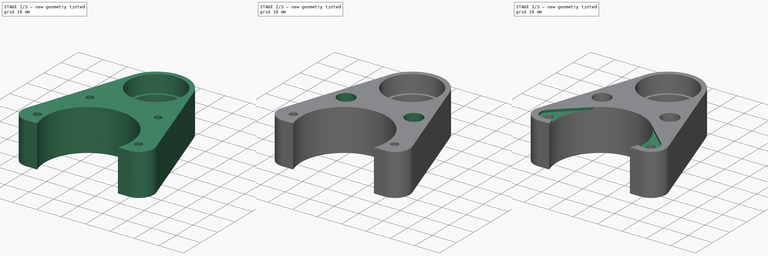
[diagram: build sequence overview — one tinted view per stage of 3, left to right]
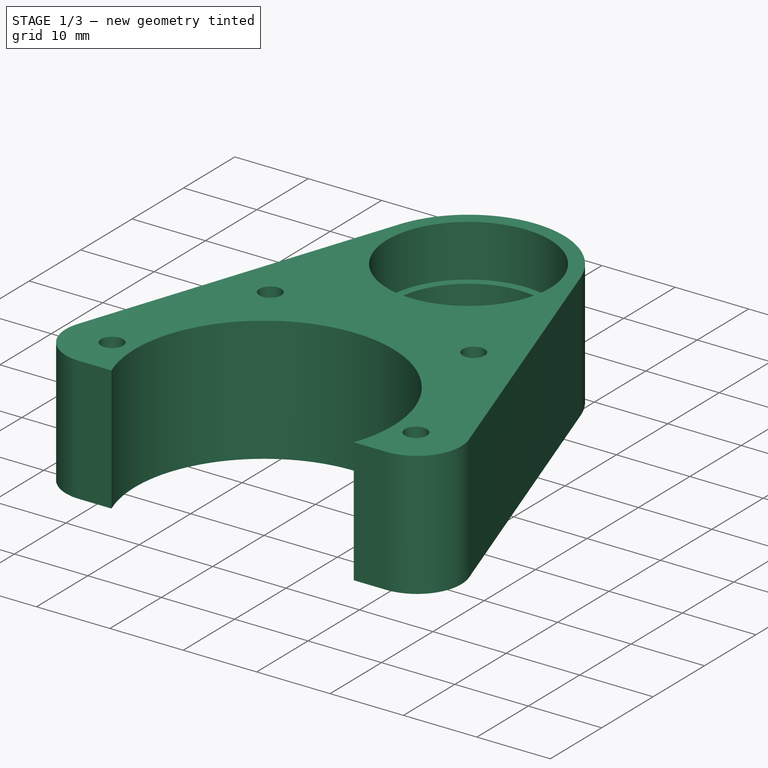
[diagram: stage 1 of 3 — iso view after this stage's code; geometry added in this stage tinted green]
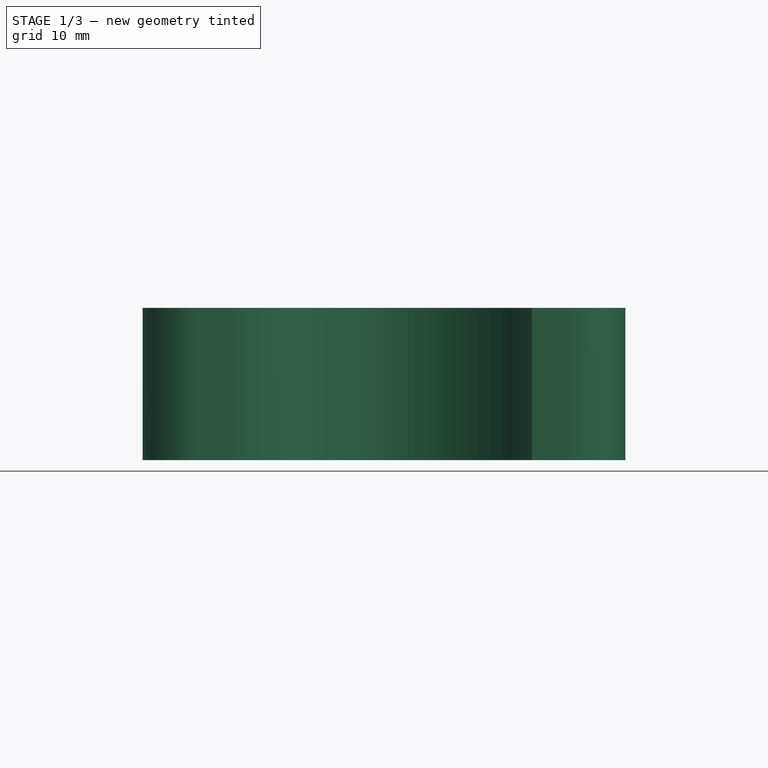
[diagram: stage 1 of 3 — front view after this stage's code; geometry added in this stage tinted green]
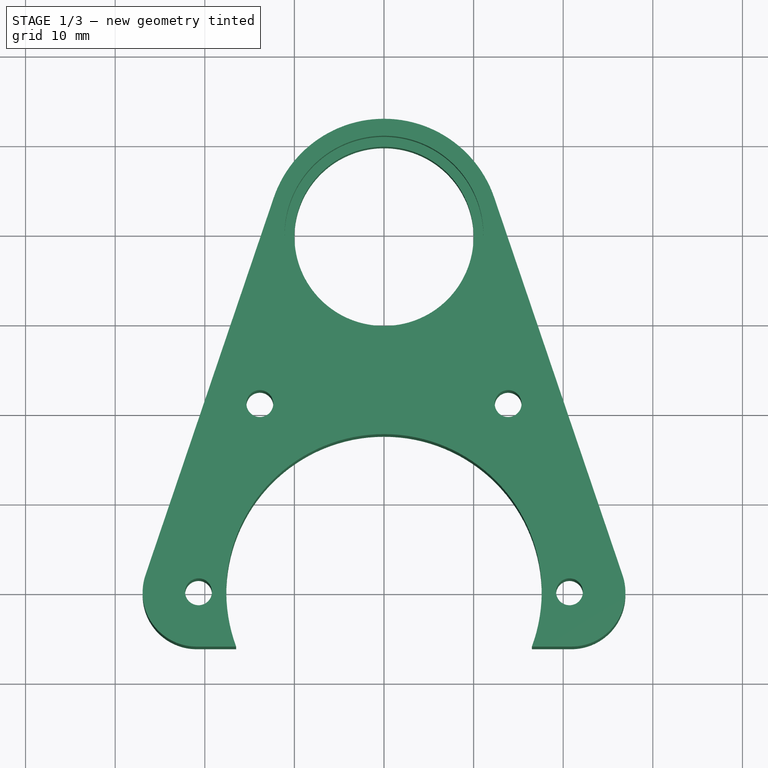
[diagram: stage 1 of 3 — top view after this stage's code; geometry added in this stage tinted green]
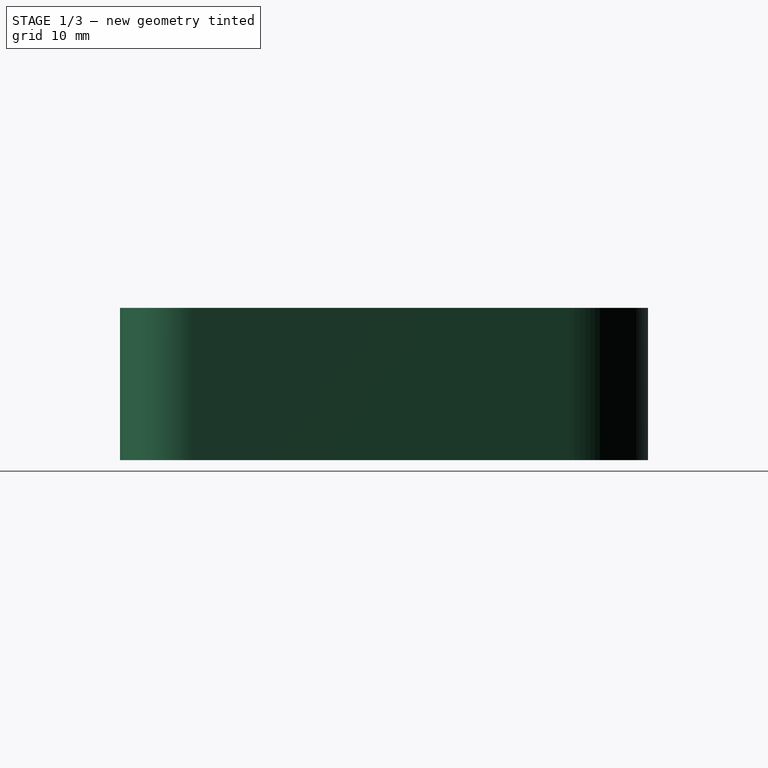
[diagram: stage 1 of 3 — right view after this stage's code; geometry added in this stage tinted green]
FCSTD DOCUMENT  (FreeCAD 0.14R3702 (Git))
Label: base-motor
License: CC-BY 3.0
LicenseURL: http://creativecommons.org/licenses/by/3.0/
objects: Sketcher::SketchObject×4, PartDesign::Pocket×3, Part::Extrusion×1, Part::Chamfer×1
note: 12 computed .brp shape members not serialized (recipe doc carries the construction recipe); baked Part::Feature solids carry a one-line shape summary decoded from their .brp

FEATURE [Sketcher::SketchObject] Sketch  label="sk-base"
  sketch-geometry (15):
    g0: LineSegment StartX=-12.3089 StartY=43.9824 StartZ=0 EndX=-26.621 EndY=1.86113 EndZ=0
    g1: LineSegment StartX=12.3089 StartY=43.9824 StartZ=0 EndX=26.621 EndY=1.86113 EndZ=0
    g2: ArcOfCircle CenterX=0 CenterY=39.8 CenterZ=0 NormalX=0 NormalY=0 NormalZ=1 Radius=13 StartAngle=0.327546 EndAngle=2.81405
    g3: Circle CenterX=0 CenterY=39.8 CenterZ=0 NormalX=0 NormalY=0 NormalZ=1 Radius=10
    g4: Circle CenterX=-13.8562 CenterY=21.0091 CenterZ=0 NormalX=0 NormalY=0 NormalZ=1 Radius=1.5
    g5: Circle CenterX=13.8562 CenterY=21.0091 CenterZ=0 NormalX=0 NormalY=0 NormalZ=1 Radius=1.5
    g6: ArcOfCircle CenterX=0 CenterY=0 CenterZ=0 NormalX=0 NormalY=0 NormalZ=1 Radius=17.6 StartAngle=5.92833 EndAngle=9.77963
    g7: LineSegment [constr] StartX=0 StartY=39.8 StartZ=0 EndX=0 EndY=0 EndZ=0
    g8: LineSegment StartX=-20.9071 StartY=-6.11514 StartZ=0 EndX=-16.5035 EndY=-6.11514 EndZ=0
    g9: LineSegment StartX=16.5035 StartY=-6.11514 StartZ=0 EndX=20.9071 EndY=-6.11514 EndZ=0
    g10: ArcOfCircle CenterX=-20.9071 CenterY=-0.080376 CenterZ=0 NormalX=0 NormalY=0 NormalZ=1 Radius=6.03477 StartAngle=2.81405 EndAngle=4.71239
    g11: ArcOfCircle CenterX=20.9071 CenterY=-0.080376 CenterZ=0 NormalX=0 NormalY=0 NormalZ=1 Radius=6.03477 StartAngle=4.71239 EndAngle=6.61073
    g12: Circle CenterX=20.7 CenterY=0 CenterZ=0 NormalX=0 NormalY=0 NormalZ=1 Radius=1.5
    g13: Circle CenterX=-20.7 CenterY=0 CenterZ=0 NormalX=0 NormalY=0 NormalZ=1 Radius=1.5
    g14: LineSegment [constr] StartX=20.7 StartY=0 StartZ=0 EndX=-20.7 EndY=0 EndZ=0
  constraints (31):
    c: Tangent(g0,g2)
    c: Tangent(g1,g2)
    c: Coincident(g2,g3)
    c: Symmetric(g4,g5,g-2)
    c: Symmetric(g0,g1,g-2)
    c: Radius(g6) = 17.6
    c: Radius(g3) = 10
    c: Coincident(g6,g7)
    c: Coincident(g2,g7)
    c: DistanceY(g7) = -39.8
    c: Radius(g2) = 13
    c: Symmetric(g6,g6,g-2)
    c: Equal(g4,g5)
    c: Radius(g4) = 1.5
    c: Tangent(g0,g10)
    c: Tangent(g8,g10)
    c: Tangent(g9,g11)
    c: Tangent(g1,g11)
    c: Coincident(g6,g8)
    c: Coincident(g6,g9)
    c: Horizontal(g9)
    c: Horizontal(g8)
    c: Equal(g11,g10)
    c: Coincident(g12,g14)
    c: Coincident(g13,g14)
    c: Equal(g13,g12)
    c: Radius(g13) = 1.5
    c: PointOnObject(g-1,g14)
    c: Symmetric(g12,g13,g-2)
    c: DistanceX(g14) = -41.4
    c: Coincident(g6,g-1)
FEATURE [Part::Extrusion] Extrude  label="extrude-base"
  Base = -> Sketch
  Dir = (0,0,17)
  Solid = true
FEATURE [Sketcher::SketchObject] Sketch001  label="sk-hueco-rodamiento"
  ExternalGeometry = -> [Extrude]
  Placement = pos=(0,0,17) rot=(0,0,1;0rad)
  Support = -> Extrude [Face15]
  sketch-geometry (1):
    g0: Circle CenterX=0 CenterY=39.8 CenterZ=0 NormalX=0 NormalY=0 NormalZ=1 Radius=11.1
  constraints (2):
    c: Coincident(g0,g-3)
    c: Radius(g0) = 11.1
FEATURE [PartDesign::Pocket] Pocket  label="pocket-hueco-rodamiento"
  Length = 7.1
  Sketch = -> Sketch001
  Type = 0
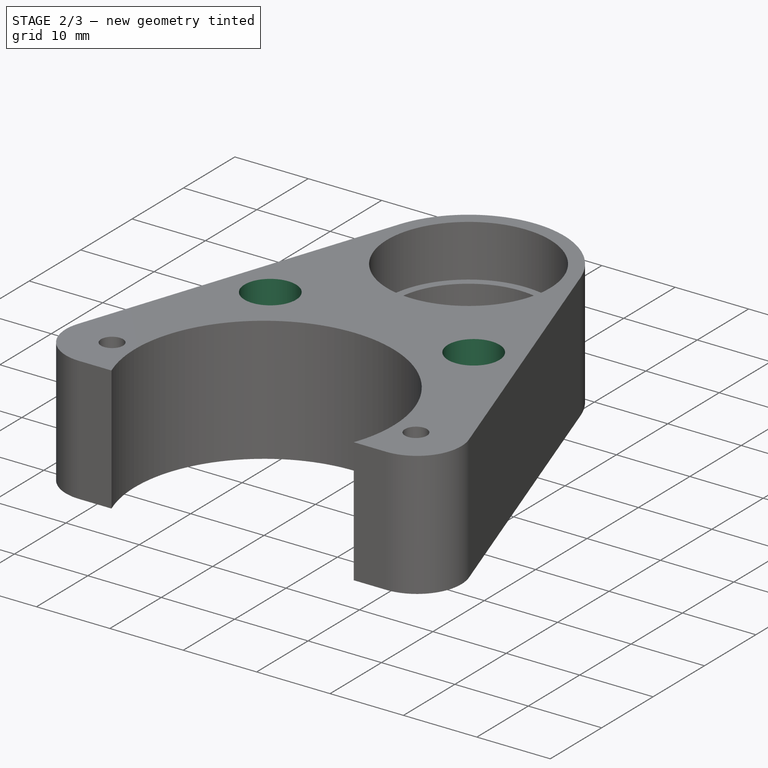
[diagram: stage 2 of 3 — iso view after this stage's code; geometry added in this stage tinted green]
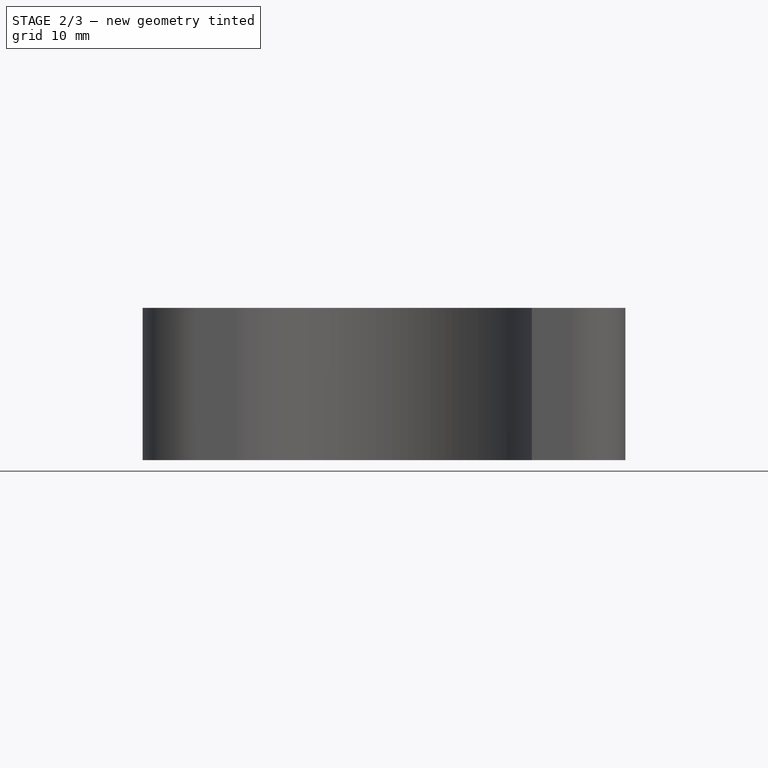
[diagram: stage 2 of 3 — front view after this stage's code; geometry added in this stage tinted green]
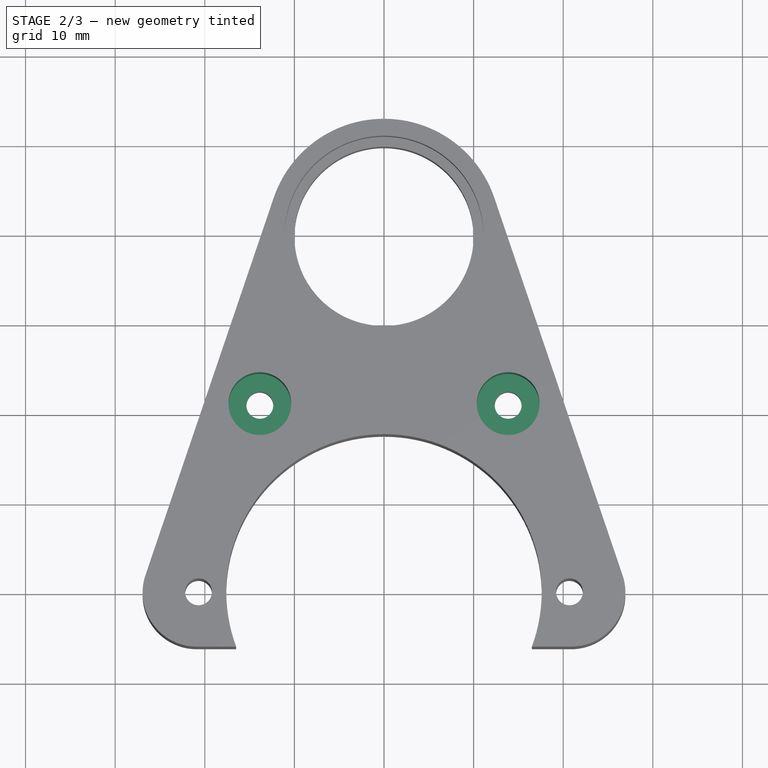
[diagram: stage 2 of 3 — top view after this stage's code; geometry added in this stage tinted green]
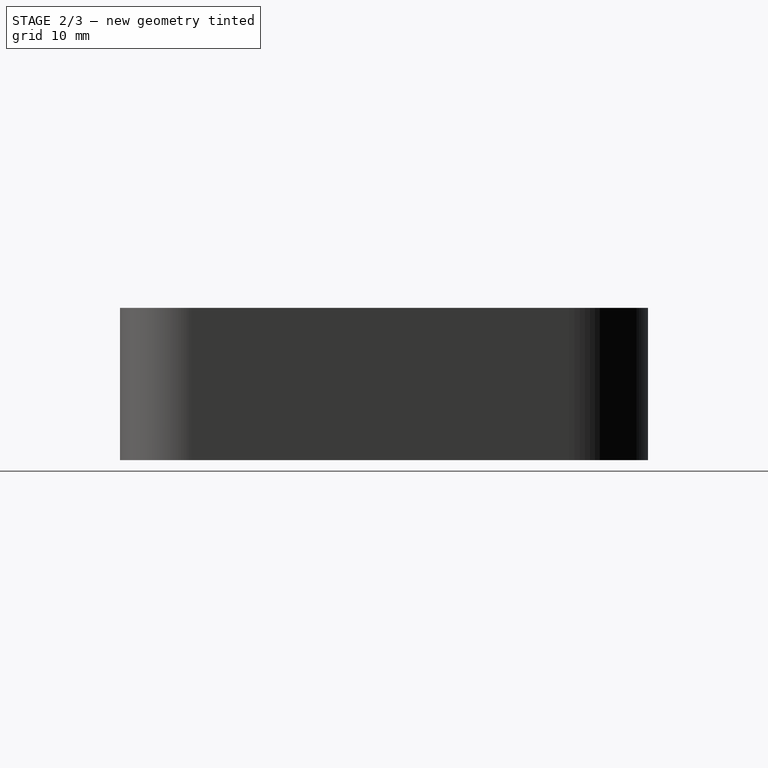
[diagram: stage 2 of 3 — right view after this stage's code; geometry added in this stage tinted green]
FEATURE [Sketcher::SketchObject] Sketch002  label="sk-hueco-tirafondos"
  Placement = pos=(0,0,17) rot=(0,0,1;0rad)
  Support = -> Pocket [Face5]
  sketch-geometry (2):
    g0: Circle CenterX=-13.8562 CenterY=21.0091 CenterZ=0 NormalX=0 NormalY=0 NormalZ=1 Radius=3.5
    g1: Circle CenterX=13.8562 CenterY=21.0091 CenterZ=0 NormalX=0 NormalY=0 NormalZ=1 Radius=3.5
  constraints (2):
    c: Equal(g0,g1)
    c: Radius(g0) = 3.5
FEATURE [PartDesign::Pocket] Pocket001  label="pocket-hueco-tirafondos"
  Length = 11
  Sketch = -> Sketch002
  Type = 0
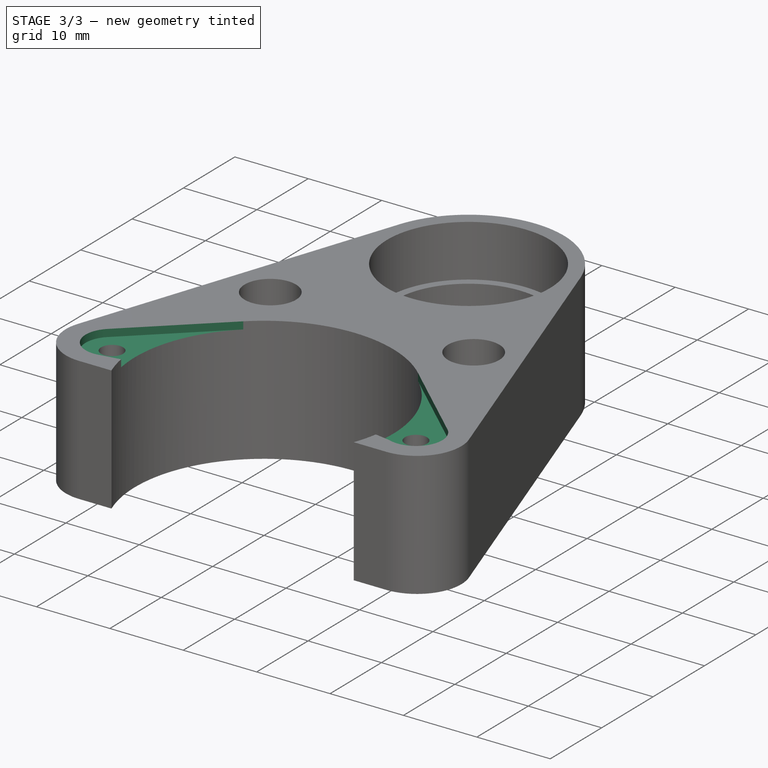
[diagram: stage 3 of 3 — iso view after this stage's code; geometry added in this stage tinted green]
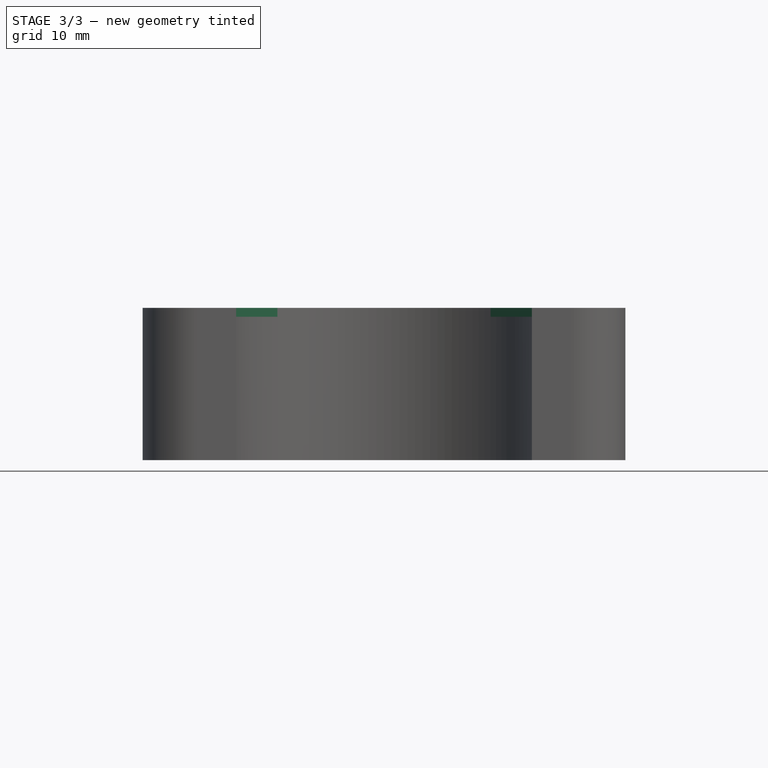
[diagram: stage 3 of 3 — front view after this stage's code; geometry added in this stage tinted green]
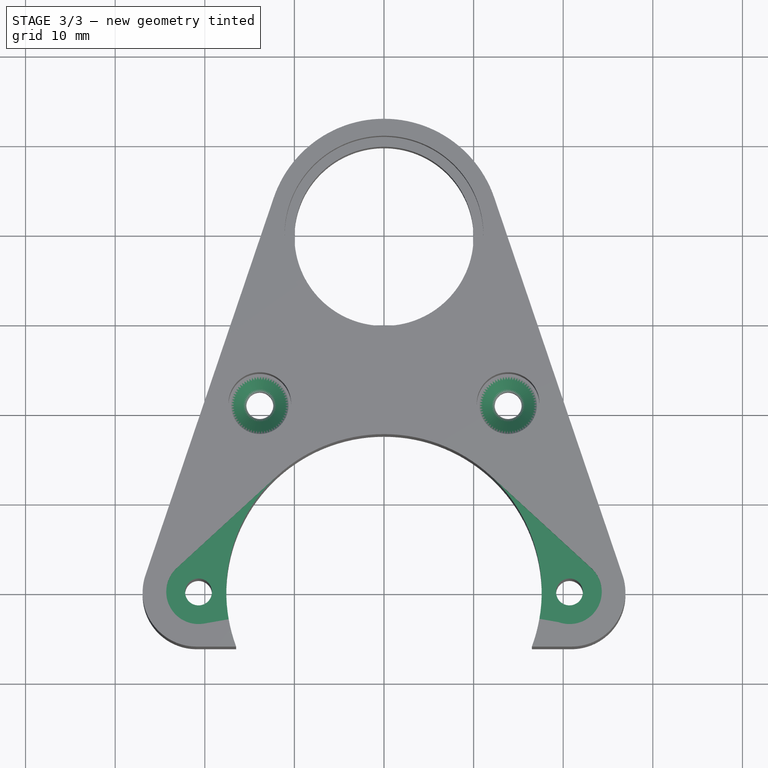
[diagram: stage 3 of 3 — top view after this stage's code; geometry added in this stage tinted green]
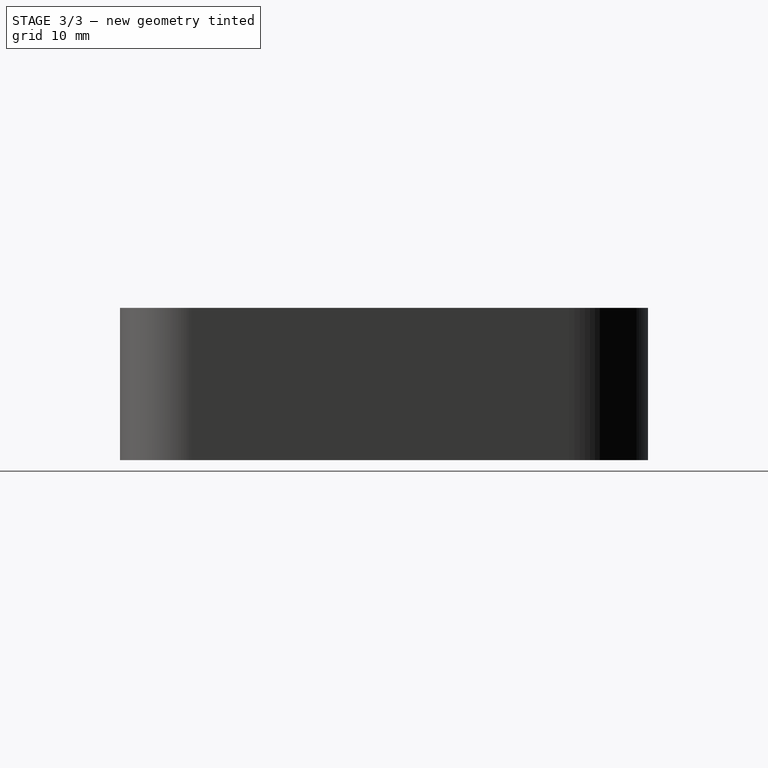
[diagram: stage 3 of 3 — right view after this stage's code; geometry added in this stage tinted green]
FEATURE [Part::Chamfer] Chamfer  label="chamfer-para-caperuzo-tornillo"
  Base = -> Pocket001
  Edges = 2 edges r=1.7: [Edge38,Edge40]
FEATURE [Sketcher::SketchObject] Sketch003  label="sk-hueco-abracaderas-motor"
  ExternalGeometry = -> [Chamfer]
  Placement = pos=(0,0,17) rot=(0,0,1;0rad)
  Support = -> Chamfer [Face18]
  sketch-geometry (8):
    g0: LineSegment StartX=-11.9034 StartY=12.9642 StartZ=0 EndX=-23.1348 EndY=2.65176 EndZ=0
    g1: LineSegment StartX=11.9034 StartY=12.9642 StartZ=0 EndX=23.1348 EndY=2.65176 EndZ=0
    g2: ArcOfCircle CenterX=-20.7 CenterY=0 CenterZ=0 NormalX=0 NormalY=0 NormalZ=1 Radius=3.6 StartAngle=2.31356 EndAngle=4.88719
    g3: ArcOfCircle CenterX=20.7 CenterY=0 CenterZ=0 NormalX=0 NormalY=0 NormalZ=1 Radius=3.6 StartAngle=4.36658 EndAngle=7.11121
    g4: LineSegment StartX=-20.0739 StartY=-3.54514 StartZ=0 EndX=-17.3318 EndY=-3.06087 EndZ=0
    g5: LineSegment StartX=19.4798 StartY=-3.38689 StartZ=0 EndX=17.3399 EndY=-3.01483 EndZ=0
    g6: ArcOfCircle CenterX=0 CenterY=0 CenterZ=0 NormalX=0 NormalY=0 NormalZ=1 Radius=17.6 StartAngle=2.31356 EndAngle=3.31639
    g7: ArcOfCircle CenterX=0 CenterY=0 CenterZ=0 NormalX=0 NormalY=0 NormalZ=1 Radius=17.6 StartAngle=6.11104 EndAngle=7.11121
  constraints (24):
    c: Tangent(g0,g-3)
    c: Coincident(g0,g2)
    c: Tangent(g2,g0)
    c: Coincident(g2,g-4)
    c: Coincident(g2,g4)
    c: Perpendicular(g4,g-3)
    c: Tangent(g2,g4)
    c: Radius(g2) = 3.6
    c: Symmetric(g1,g0,g-2)
    c: Coincident(g3,g-5)
    c: Perpendicular(g5,g-3)
    c: Coincident(g3,g5)
    c: Equal(g3,g2)
    c: Coincident(g1,g3)
    c: Tangent(g3,g1)
    c: Coincident(g6,g7)
    c: Coincident(g6,g-3)
    c: Coincident(g6,g-1)
    c: Equal(g6,g-3)
    c: Equal(g7,g-3)
    c: Coincident(g0,g6)
    c: Coincident(g4,g6)
    c: Coincident(g1,g7)
    c: Coincident(g5,g7)
FEATURE [PartDesign::Pocket] Pocket002  label="base-motor"
  Length = 1
  Sketch = -> Sketch003
  Type = 0
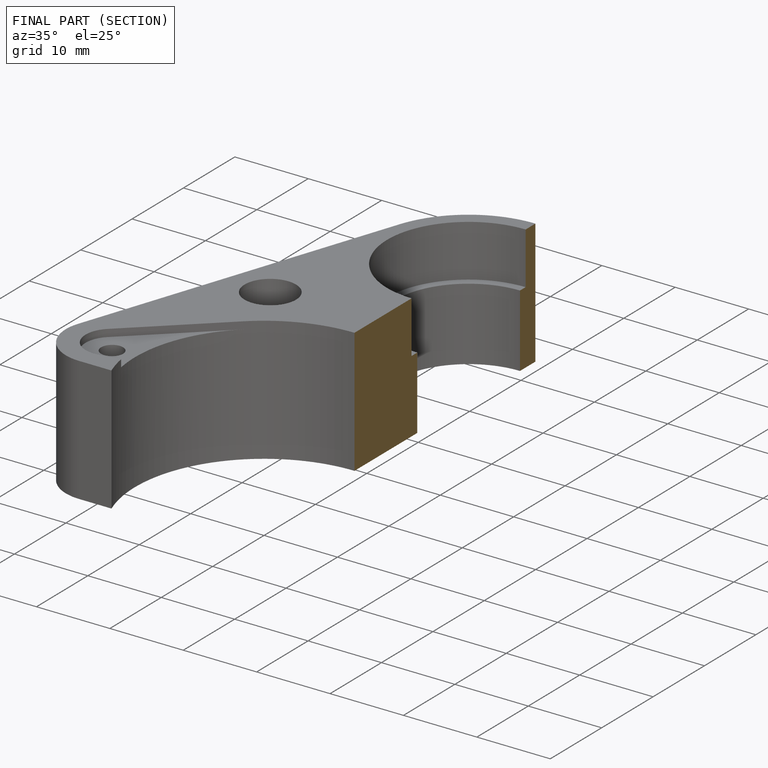
[diagram: finished part — half-section view (interior)]
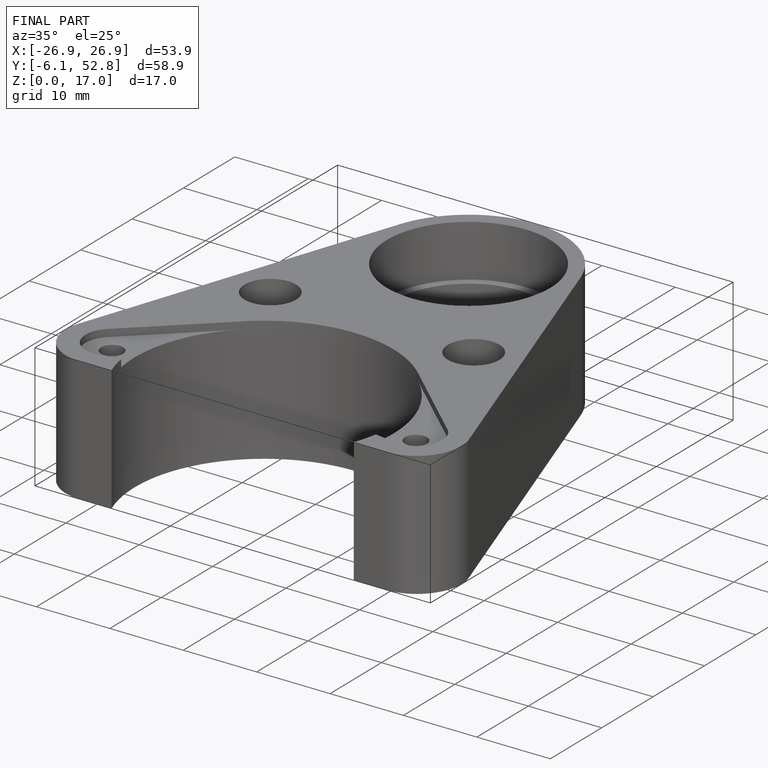
[diagram: finished part — iso view with bounding-box wireframe]
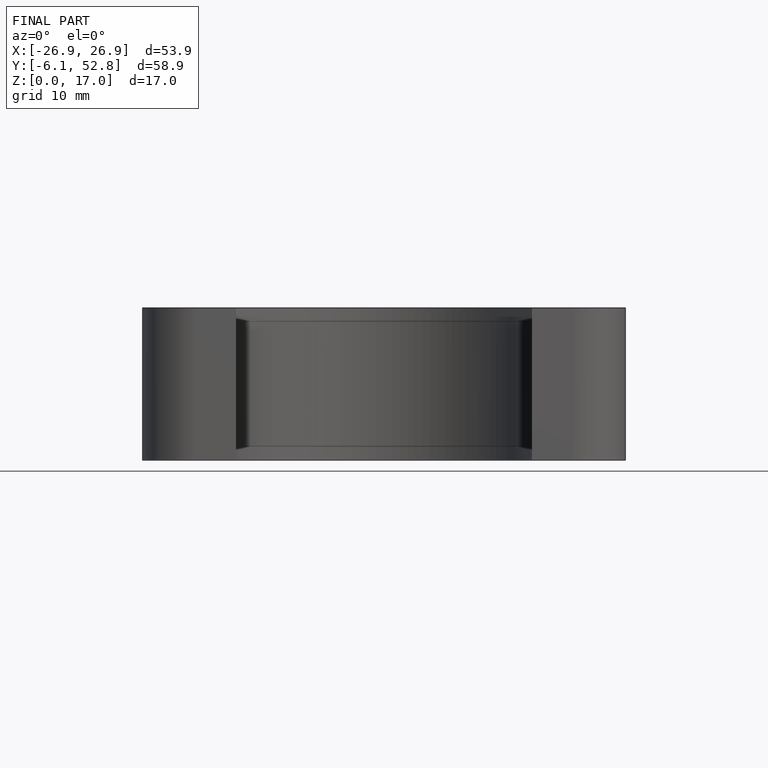
[diagram: finished part — front view with bounding-box wireframe]
